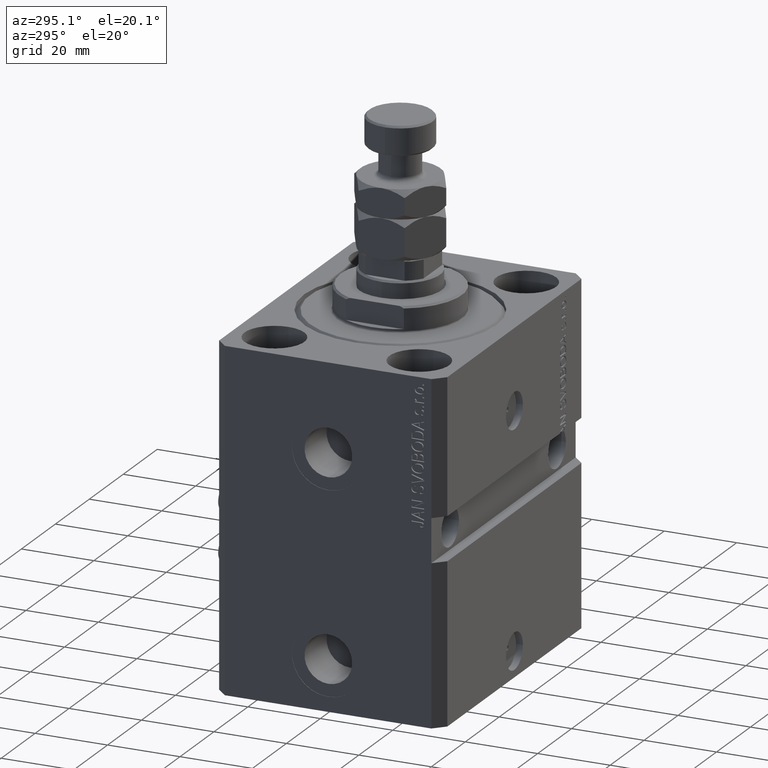
[diagram: clean part render]
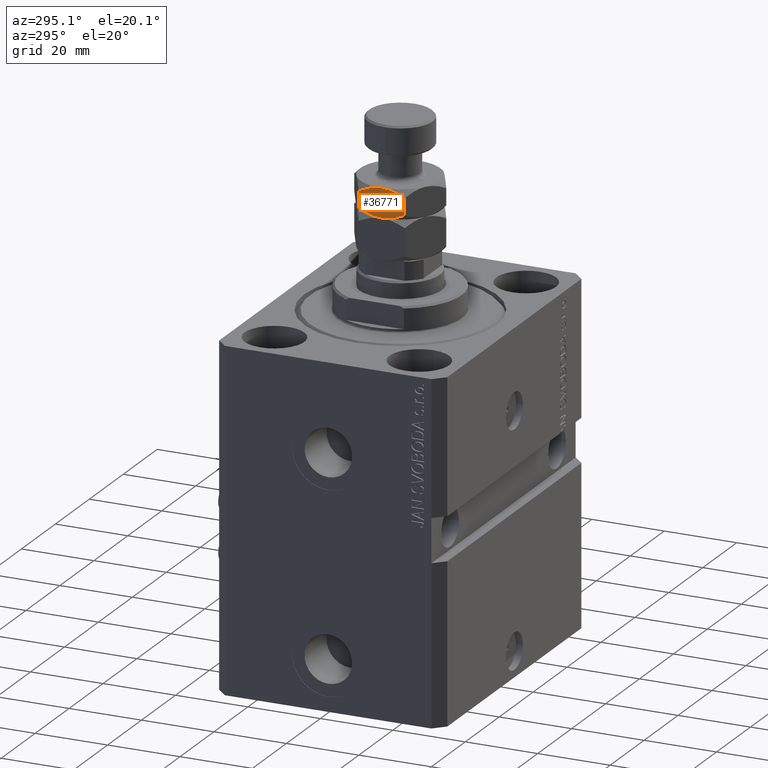
[diagram: same view with one face highlighted and labeled with its STEP entity id]
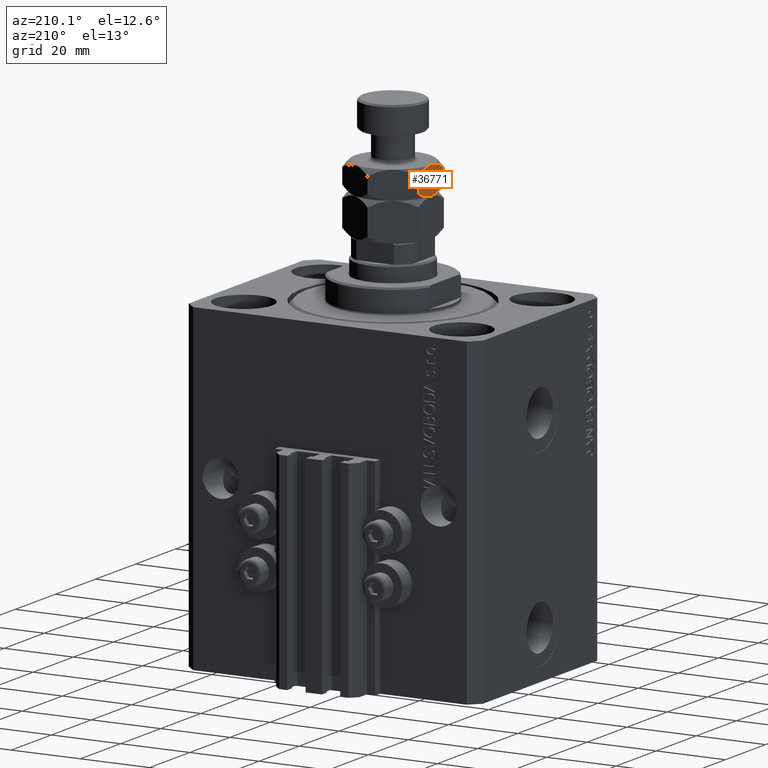
[diagram: same view with one face highlighted and labeled with its STEP entity id]
A machine part, auxiliary view. The second image highlights one B-rep face of the part: STEP entity #36771.
A second angle (auxiliary view) of the same face is appended — the face is thin or edge-on in the first view.
In plain terms, the highlighted planar face has unit normal (1, 0, 0).
Its self-contained STEP definition (entity closure, byte-faithful):
#441 = CARTESIAN_POINT ( 'NONE',  ( -10.99999999999999822, 3.795739597931037768, 18.37461314105659582 ) ) ;
#829 = ORIENTED_EDGE ( 'NONE', *, *, #24637, .T. ) ;
#885 = FACE_OUTER_BOUND ( 'NONE', #31134, .T. ) ;
#1066 = DIRECTION ( 'NONE',  ( -0.000000000000000000, -0.000000000000000000, -1.000000000000000000 ) ) ;
#2560 = CARTESIAN_POINT ( 'NONE',  ( -10.99999999999999467, 0.000000000000000000, 11.00000000000000000 ) ) ;
#4264 = B_SPLINE_CURVE_WITH_KNOTS ( 'NONE', 3,
 ( #17721, #23123, #40885, #10259, #45513, #33177, #22874, #46024, #38074, #26599 ),
 .UNSPECIFIED., .F., .F.,
 ( 4, 2, 2, 2, 4 ),
 ( 0.02420952495469342464, 0.02586503891361750795, 0.02752055287254159127, 0.02917606683146567459, 0.03083158079038975791 ),
 .UNSPECIFIED. ) ;
#4810 = CARTESIAN_POINT ( 'NONE',  ( -11.00000000000000000, -6.350852961085883486, 19.00000000000000000 ) ) ;
#5310 = CARTESIAN_POINT ( 'NONE',  ( -11.00000000000000178, -5.857508627101824850, 12.45503375517972877 ) ) ;
#6823 = CARTESIAN_POINT ( 'NONE',  ( -11.00000000000000000, 6.350852961085879045, 19.00000000000000000 ) ) ;
#7666 = CARTESIAN_POINT ( 'NONE',  ( -11.00000000000000000, 5.354183909327259627, 17.77529608626038993 ) ) ;
#7814 = CARTESIAN_POINT ( 'NONE',  ( -10.99999999999999289, 0.000000000000000000, 19.00000000000000000 ) ) ;
#7824 = EDGE_CURVE ( 'NONE', #41753, #43273, #12661, .T. ) ;
#8372 = ORIENTED_EDGE ( 'NONE', *, *, #7824, .F. ) ;
#10032 = CARTESIAN_POINT ( 'NONE',  ( -11.00000000000000000, -6.350852961085883486, 12.70170592217176520 ) ) ;
#10259 = CARTESIAN_POINT ( 'NONE',  ( -10.99999999999999822, 2.203045379607315279, 11.20552095984593777 ) ) ;
#10373 = CARTESIAN_POINT ( 'NONE',  ( -11.00000000000000000, -6.350852961085883486, 12.70170592217176520 ) ) ;
#10667 = CARTESIAN_POINT ( 'NONE',  ( -10.99999999999999467, 4.320360588283465475, 18.19146003705391124 ) ) ;
#11285 = CARTESIAN_POINT ( 'NONE',  ( -10.99999999999999822, -0.5599838175859688238, 18.99999999999999645 ) ) ;
#12661 = B_SPLINE_CURVE_WITH_KNOTS ( 'NONE', 3,
 ( #10032, #5310, #17511, #36689, #28723, #21492, #31967, #2560 ),
 .UNSPECIFIED., .F., .F.,
 ( 4, 2, 2, 4 ),
 ( 0.01758446262663974566, 0.01924072820865316627, 0.02089699379066658341, 0.02420952495469342464 ),
 .UNSPECIFIED. ) ;
#14651 = CARTESIAN_POINT ( 'NONE',  ( -10.99999999999999822, 5.857508627101817744, 17.54496624482026590 ) ) ;
#14900 = CARTESIAN_POINT ( 'NONE',  ( -11.00000000000000000, 6.350852961085878157, 17.29829407782823125 ) ) ;
#15531 = CARTESIAN_POINT ( 'NONE',  ( -11.00000000000000000, -5.857738984709214947, 17.54485106601656952 ) ) ;
#16073 = PLANE ( 'NONE',  #32511 ) ;
#17366 = ORIENTED_EDGE ( 'NONE', *, *, #36893, .F. ) ;
#17511 = CARTESIAN_POINT ( 'NONE',  ( -11.00000000000000178, -5.354183909327263180, 12.22470391373960830 ) ) ;
#17721 = CARTESIAN_POINT ( 'NONE',  ( -10.99999999999999467, 0.000000000000000000, 11.00000000000000000 ) ) ;
#17977 = DIRECTION ( 'NONE',  ( -0.000000000000000000, -0.000000000000000000, -1.000000000000000000 ) ) ;
#18021 = B_SPLINE_CURVE_WITH_KNOTS ( 'NONE', 3,
 ( #7814, #11285, #37958, #41681, #29997, #29744, #23007, #48648, #15531, #30733 ),
 .UNSPECIFIED., .F., .F.,
 ( 4, 2, 2, 2, 4 ),
 ( 0.02420952495469341423, 0.02586503891361749755, 0.02752055287254158086, 0.02917606683146566418, 0.03083158079038974750 ),
 .UNSPECIFIED. ) ;
#19488 = VECTOR ( 'NONE', #17977, 1000.000000000000000 ) ;
#21492 = CARTESIAN_POINT ( 'NONE',  ( -11.00000000000000178, -2.206126381938906089, 11.17295465453324432 ) ) ;
#22600 = VERTEX_POINT ( 'NONE', #46419 ) ;
#22743 = VERTEX_POINT ( 'NONE', #25728 ) ;
#22874 = CARTESIAN_POINT ( 'NONE',  ( -11.00000000000000000, 4.319920968304636233, 11.80838390972506780 ) ) ;
#23007 = CARTESIAN_POINT ( 'NONE',  ( -11.00000000000000000, -4.319920968304638009, 18.19161609027492688 ) ) ;
#23123 = CARTESIAN_POINT ( 'NONE',  ( -10.99999999999999822, 0.5599838175859687128, 11.00000000000000533 ) ) ;
#23250 = CARTESIAN_POINT ( 'NONE',  ( -10.99999999999999467, 0.000000000000000000, 11.00000000000000000 ) ) ;
#24066 = ORIENTED_EDGE ( 'NONE', *, *, #45995, .F. ) ;
#24472 = LINE ( 'NONE', #25454, #19488 ) ;
#24571 = B_SPLINE_CURVE_WITH_KNOTS ( 'NONE', 3,
 ( #14900, #14651, #7666, #10667, #441, #26586, #30104, #30583 ),
 .UNSPECIFIED., .F., .F.,
 ( 4, 2, 2, 4 ),
 ( 0.01758446262663974566, 0.01924072820865316280, 0.02089699379066657994, 0.02420952495469341423 ),
 .UNSPECIFIED. ) ;
#24637 = EDGE_CURVE ( 'NONE', #22743, #47085, #24472, .T. ) ;
#25454 = CARTESIAN_POINT ( 'NONE',  ( -11.00000000000000000, 6.350852961085879045, 19.00000000000000000 ) ) ;
#25728 = CARTESIAN_POINT ( 'NONE',  ( -11.00000000000000000, 6.350852961085878157, 17.29829407782823125 ) ) ;
#26586 = CARTESIAN_POINT ( 'NONE',  ( -10.99999999999999822, 2.206126381938900316, 18.82704534546676101 ) ) ;
#26599 = CARTESIAN_POINT ( 'NONE',  ( -11.00000000000000000, 6.350852961085879045, 12.70170592217176342 ) ) ;
#26676 = CARTESIAN_POINT ( 'NONE',  ( -11.00000000000000000, 6.350852961085879045, 12.70170592217176342 ) ) ;
#28723 = CARTESIAN_POINT ( 'NONE',  ( -11.00000000000000000, -3.795739597931043985, 11.62538685894340951 ) ) ;
#29744 = CARTESIAN_POINT ( 'NONE',  ( -11.00000000000000178, -3.797579330078869386, 18.37398353149048447 ) ) ;
#29997 = CARTESIAN_POINT ( 'NONE',  ( -11.00000000000000000, -2.739147722186622502, 18.67544347880356881 ) ) ;
#30104 = CARTESIAN_POINT ( 'NONE',  ( -11.00000000000000178, 1.120476113840667143, 18.99999999999999645 ) ) ;
#30583 = CARTESIAN_POINT ( 'NONE',  ( -10.99999999999999289, 0.000000000000000000, 19.00000000000000000 ) ) ;
#30733 = CARTESIAN_POINT ( 'NONE',  ( -11.00000000000000000, -6.350852961085883486, 17.29829407782823125 ) ) ;
#31134 = EDGE_LOOP ( 'NONE', ( #8372, #41800, #17366, #48212, #829, #24066 ) ) ;
#31967 = CARTESIAN_POINT ( 'NONE',  ( -10.99999999999999822, -1.120476113840667143, 11.00000000000000355 ) ) ;
#32511 = AXIS2_PLACEMENT_3D ( 'NONE', #6823, #32743, #40706 ) ;
#32743 = DIRECTION ( 'NONE',  ( 1.000000000000000000, 0.000000000000000000, -0.000000000000000000 ) ) ;
#33177 = CARTESIAN_POINT ( 'NONE',  ( -11.00000000000000178, 3.797579330078865834, 11.62601646850951731 ) ) ;
#36689 = CARTESIAN_POINT ( 'NONE',  ( -10.99999999999999822, -4.320360588283469028, 11.80853996294607988 ) ) ;
#36771 = ADVANCED_FACE ( 'NONE', ( #885 ), #16073, .F. ) ;
#36893 = EDGE_CURVE ( 'NONE', #37619, #22600, #18021, .T. ) ;
#37619 = VERTEX_POINT ( 'NONE', #44679 ) ;
#37958 = CARTESIAN_POINT ( 'NONE',  ( -11.00000000000000178, -1.114382991782877808, 18.95680569358157186 ) ) ;
#38074 = CARTESIAN_POINT ( 'NONE',  ( -11.00000000000000000, 5.857738984709215835, 12.45514893398343226 ) ) ;
#38948 = LINE ( 'NONE', #4810, #45902 ) ;
#40706 = DIRECTION ( 'NONE',  ( -0.000000000000000000, 0.000000000000000000, -1.000000000000000000 ) ) ;
#40885 = CARTESIAN_POINT ( 'NONE',  ( -11.00000000000000178, 1.114382991782877363, 11.04319430641842992 ) ) ;
#41681 = CARTESIAN_POINT ( 'NONE',  ( -10.99999999999999822, -2.203045379607316168, 18.79447904015406223 ) ) ;
#41753 = VERTEX_POINT ( 'NONE', #10373 ) ;
#41800 = ORIENTED_EDGE ( 'NONE', *, *, #48187, .F. ) ;
#43273 = VERTEX_POINT ( 'NONE', #23250 ) ;
#44679 = CARTESIAN_POINT ( 'NONE',  ( -10.99999999999999289, 0.000000000000000000, 19.00000000000000000 ) ) ;
#44969 = EDGE_CURVE ( 'NONE', #22743, #37619, #24571, .T. ) ;
#45513 = CARTESIAN_POINT ( 'NONE',  ( -11.00000000000000000, 2.739147722186620726, 11.32455652119641876 ) ) ;
#45902 = VECTOR ( 'NONE', #1066, 1000.000000000000000 ) ;
#45995 = EDGE_CURVE ( 'NONE', #43273, #47085, #4264, .T. ) ;
#46024 = CARTESIAN_POINT ( 'NONE',  ( -11.00000000000000178, 5.353463424270975324, 12.22439299196745388 ) ) ;
#46419 = CARTESIAN_POINT ( 'NONE',  ( -11.00000000000000000, -6.350852961085883486, 17.29829407782823125 ) ) ;
#47085 = VERTEX_POINT ( 'NONE', #26676 ) ;
#48187 = EDGE_CURVE ( 'NONE', #22600, #41753, #38948, .T. ) ;
#48212 = ORIENTED_EDGE ( 'NONE', *, *, #44969, .F. ) ;
#48648 = CARTESIAN_POINT ( 'NONE',  ( -11.00000000000000178, -5.353463424270976212, 17.77560700803254434 ) ) ;